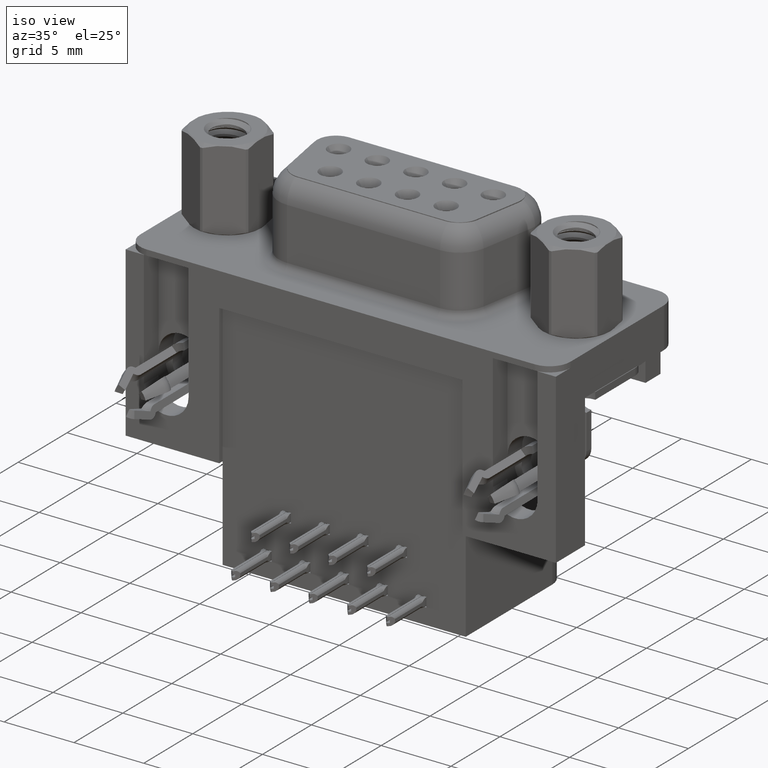
[diagram: clean part render]
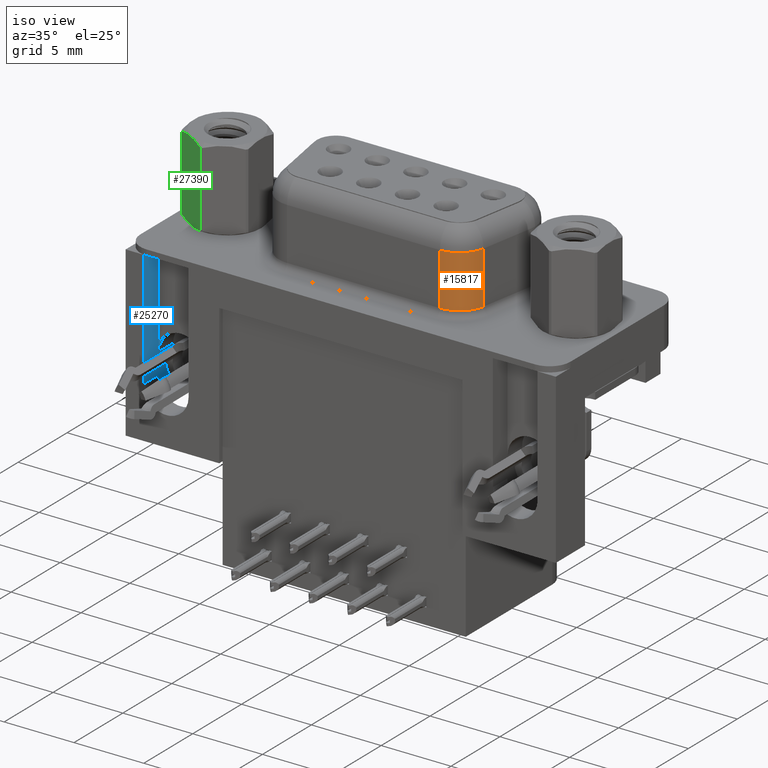
[diagram: same view with three faces highlighted in distinct colors, each labeled with its STEP entity id]
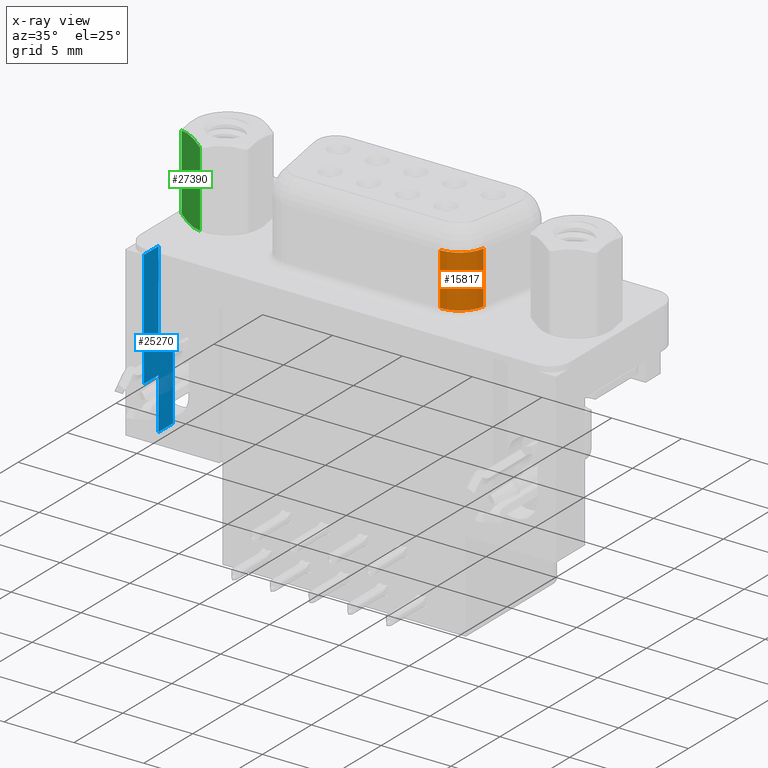
[diagram: x-ray of the same camera — body ghosted, the three highlighted faces saturated]
A machine part, iso view with three faces highlighted in distinct colors.
The next image is the same camera in x-ray (body ghosted, the three faces saturated) — at least one of them is partly hidden behind the body in this view.
Their STEP definitions:

[orange] entity #15817 — the highlighted cylindrical surface (edge-blend (fillet) strip) has radius 2 mm, axis along (-0, -0, -1).
#3161 = ORIENTED_EDGE ( 'NONE', *, *, #16836, .T. ) ;
#4892 = DIRECTION ( 'NONE',  ( 0.0000000000000000000, 0.0000000000000000000, 1.000000000000000000 ) ) ;
#5104 = VERTEX_POINT ( 'NONE', #11008 ) ;
#5550 = EDGE_LOOP ( 'NONE', ( #25216, #28884, #3161, #28348 ) ) ;
#6656 = CARTESIAN_POINT ( 'NONE',  ( 17.97232477523701300, -3.950000000000002800, 6.400000000000000400 ) ) ;
#6810 = AXIS2_PLACEMENT_3D ( 'NONE', #19035, #4892, #21443 ) ;
#8546 = CARTESIAN_POINT ( 'NONE',  ( 19.94194028126143100, -2.297296355333849700, 0.8999999999999998000 ) ) ;
#9210 = FACE_OUTER_BOUND ( 'NONE', #5550, .T. ) ;
#9433 = CARTESIAN_POINT ( 'NONE',  ( 17.97232477523701300, -1.950000000000002200, 4.650000000000000400 ) ) ;
#10049 = CARTESIAN_POINT ( 'NONE',  ( 17.97232477523701300, -3.950000000000002800, 4.650000000000000400 ) ) ;
#11008 = CARTESIAN_POINT ( 'NONE',  ( 19.94194028126143100, -2.297296355333849700, 4.650000000000000400 ) ) ;
#11175 = CARTESIAN_POINT ( 'NONE',  ( 17.97232477523701300, -1.950000000000002200, 6.400000000000000400 ) ) ;
#11297 = VERTEX_POINT ( 'NONE', #10049 ) ;
#11452 = DIRECTION ( 'NONE',  ( -0.0000000000000000000, -0.0000000000000000000, -1.000000000000000000 ) ) ;
#11827 = DIRECTION ( 'NONE',  ( -1.000000000000000000, 0.0000000000000000000, 0.0000000000000000000 ) ) ;
#14301 = VECTOR ( 'NONE', #11452, 1000.000000000000000 ) ;
#14759 = CYLINDRICAL_SURFACE ( 'NONE', #30057, 2.000000000000001800 ) ;
#15030 = LINE ( 'NONE', #19691, #14301 ) ;
#15789 = LINE ( 'NONE', #6656, #20629 ) ;
#15817 = ADVANCED_FACE ( 'NONE', ( #9210 ), #14759, .T. ) ;
#16836 = EDGE_CURVE ( 'NONE', #11297, #25065, #15789, .T. ) ;
#18171 = EDGE_CURVE ( 'NONE', #5104, #29366, #15030, .T. ) ;
#18283 = DIRECTION ( 'NONE',  ( -0.0000000000000000000, -0.0000000000000000000, -1.000000000000000000 ) ) ;
#19035 = CARTESIAN_POINT ( 'NONE',  ( 17.97232477523701300, -1.950000000000002200, 0.8999999999999998000 ) ) ;
#19691 = CARTESIAN_POINT ( 'NONE',  ( 19.94194028126143100, -2.297296355333849700, 6.400000000000000400 ) ) ;
#20629 = VECTOR ( 'NONE', #23204, 1000.000000000000000 ) ;
#21443 = DIRECTION ( 'NONE',  ( 1.000000000000000000, 0.0000000000000000000, 0.0000000000000000000 ) ) ;
#22194 = EDGE_CURVE ( 'NONE', #5104, #11297, #28887, .T. ) ;
#22233 = EDGE_CURVE ( 'NONE', #25065, #29366, #27389, .T. ) ;
#23204 = DIRECTION ( 'NONE',  ( -0.0000000000000000000, -0.0000000000000000000, -1.000000000000000000 ) ) ;
#24913 = CARTESIAN_POINT ( 'NONE',  ( 17.97232477523701300, -3.950000000000002800, 0.8999999999999998000 ) ) ;
#25065 = VERTEX_POINT ( 'NONE', #24913 ) ;
#25216 = ORIENTED_EDGE ( 'NONE', *, *, #18171, .F. ) ;
#25929 = DIRECTION ( 'NONE',  ( -0.0000000000000000000, -0.0000000000000000000, -1.000000000000000000 ) ) ;
#27251 = DIRECTION ( 'NONE',  ( -1.000000000000000000, 0.0000000000000000000, 0.0000000000000000000 ) ) ;
#27389 = CIRCLE ( 'NONE', #6810, 2.000000000000001800 ) ;
#28348 = ORIENTED_EDGE ( 'NONE', *, *, #22233, .T. ) ;
#28884 = ORIENTED_EDGE ( 'NONE', *, *, #22194, .T. ) ;
#28887 = CIRCLE ( 'NONE', #29558, 2.000000000000001800 ) ;
#29366 = VERTEX_POINT ( 'NONE', #8546 ) ;
#29558 = AXIS2_PLACEMENT_3D ( 'NONE', #9433, #25929, #11827 ) ;
#30057 = AXIS2_PLACEMENT_3D ( 'NONE', #11175, #18283, #27251 ) ;

[blue] entity #25270 — the highlighted planar face has unit normal (-1, 0, 0).
#279 = FACE_OUTER_BOUND ( 'NONE', #23797, .T. ) ;
#338 = CARTESIAN_POINT ( 'NONE',  ( -1.600000000000000300, -3.294999999999998200, -12.05000000000000100 ) ) ;
#655 = EDGE_CURVE ( 'NONE', #8091, #10678, #3740, .T. ) ;
#982 = ORIENTED_EDGE ( 'NONE', *, *, #655, .F. ) ;
#1026 = CARTESIAN_POINT ( 'NONE',  ( -1.600000000000000500, -4.774999999999997700, -2.168404344971008900E-016 ) ) ;
#1117 = CARTESIAN_POINT ( 'NONE',  ( -1.600000000000000800, -6.274999999999998600, -2.168404344971008900E-016 ) ) ;
#3200 = VECTOR ( 'NONE', #21126, 1000.000000000000000 ) ;
#3270 = LINE ( 'NONE', #1117, #15783 ) ;
#3528 = VERTEX_POINT ( 'NONE', #10910 ) ;
#3740 = LINE ( 'NONE', #1026, #23353 ) ;
#3973 = VERTEX_POINT ( 'NONE', #5645 ) ;
#5645 = CARTESIAN_POINT ( 'NONE',  ( -1.599999999999997200, -6.274999999999998600, -8.349999999999999600 ) ) ;
#5760 = EDGE_CURVE ( 'NONE', #3528, #25320, #17697, .T. ) ;
#6597 = DIRECTION ( 'NONE',  ( -1.970636860084006900E-016, -1.000000000000000000, -0.0000000000000000000 ) ) ;
#6759 = CARTESIAN_POINT ( 'NONE',  ( -1.600000000000000300, -4.774999999999997700, -6.850000000000000500 ) ) ;
#6803 = EDGE_CURVE ( 'NONE', #24375, #3973, #3270, .T. ) ;
#7322 = CARTESIAN_POINT ( 'NONE',  ( -1.600000000000000500, -4.774999999999997700, -2.168404344971008900E-016 ) ) ;
#8091 = VERTEX_POINT ( 'NONE', #7322 ) ;
#9742 = CARTESIAN_POINT ( 'NONE',  ( -1.599999999999997000, -4.794999999999998200, -8.349999999999999600 ) ) ;
#10254 = LINE ( 'NONE', #23141, #15025 ) ;
#10423 = DIRECTION ( 'NONE',  ( 0.0000000000000000000, 0.0000000000000000000, -1.000000000000000000 ) ) ;
#10678 = VERTEX_POINT ( 'NONE', #6759 ) ;
#10814 = VECTOR ( 'NONE', #21908, 1000.000000000000000 ) ;
#10910 = CARTESIAN_POINT ( 'NONE',  ( -1.600000000000000300, -4.794999999999998200, -12.04999999999999900 ) ) ;
#11129 = DIRECTION ( 'NONE',  ( 0.0000000000000000000, 0.0000000000000000000, -1.000000000000000000 ) ) ;
#11132 = EDGE_CURVE ( 'NONE', #3528, #11268, #15480, .T. ) ;
#11268 = VERTEX_POINT ( 'NONE', #338 ) ;
#11611 = CARTESIAN_POINT ( 'NONE',  ( -1.600000000000000300, -3.294999999999998200, -6.850000000000000500 ) ) ;
#11914 = DIRECTION ( 'NONE',  ( -1.000000000000000000, 1.970636860084006900E-016, 0.0000000000000000000 ) ) ;
#12005 = DIRECTION ( 'NONE',  ( -0.0000000000000000000, 1.000000000000000000, -0.0000000000000000000 ) ) ;
#13307 = CARTESIAN_POINT ( 'NONE',  ( -1.600000000000000300, -3.294999999999998200, -6.850000000000000500 ) ) ;
#13413 = VERTEX_POINT ( 'NONE', #13307 ) ;
#14375 = CARTESIAN_POINT ( 'NONE',  ( -1.600000000000000300, -4.794999999999998200, -6.850000000000000500 ) ) ;
#14924 = ORIENTED_EDGE ( 'NONE', *, *, #26472, .T. ) ;
#15025 = VECTOR ( 'NONE', #6597, 1000.000000000000000 ) ;
#15480 = LINE ( 'NONE', #23581, #21064 ) ;
#15783 = VECTOR ( 'NONE', #10423, 1000.000000000000000 ) ;
#17697 = LINE ( 'NONE', #21820, #30255 ) ;
#18080 = ORIENTED_EDGE ( 'NONE', *, *, #11132, .T. ) ;
#18666 = VECTOR ( 'NONE', #12005, 1000.000000000000000 ) ;
#18669 = ORIENTED_EDGE ( 'NONE', *, *, #5760, .F. ) ;
#19275 = EDGE_CURVE ( 'NONE', #10678, #13413, #24937, .T. ) ;
#19523 = CARTESIAN_POINT ( 'NONE',  ( -1.599999999999997000, -4.774999999999997700, -8.349999999999999600 ) ) ;
#19714 = ORIENTED_EDGE ( 'NONE', *, *, #19275, .F. ) ;
#20644 = ORIENTED_EDGE ( 'NONE', *, *, #25792, .T. ) ;
#21064 = VECTOR ( 'NONE', #25911, 1000.000000000000000 ) ;
#21126 = DIRECTION ( 'NONE',  ( -0.0000000000000000000, -0.0000000000000000000, 1.000000000000000000 ) ) ;
#21476 = EDGE_CURVE ( 'NONE', #25320, #3973, #23408, .T. ) ;
#21742 = ORIENTED_EDGE ( 'NONE', *, *, #6803, .T. ) ;
#21820 = CARTESIAN_POINT ( 'NONE',  ( -1.600000000000000300, -4.794999999999998200, -6.850000000000000500 ) ) ;
#21908 = DIRECTION ( 'NONE',  ( -1.970636860084006900E-016, -1.000000000000000000, -0.0000000000000000000 ) ) ;
#22040 = LINE ( 'NONE', #11611, #3200 ) ;
#23141 = CARTESIAN_POINT ( 'NONE',  ( -1.600000000000000500, -4.774999999999997700, -2.168404344971008900E-016 ) ) ;
#23353 = VECTOR ( 'NONE', #11129, 1000.000000000000000 ) ;
#23408 = LINE ( 'NONE', #19523, #10814 ) ;
#23581 = CARTESIAN_POINT ( 'NONE',  ( -1.600000000000000500, -4.774999999999997700, -12.05000000000000100 ) ) ;
#23696 = PLANE ( 'NONE',  #25281 ) ;
#23797 = EDGE_LOOP ( 'NONE', ( #18669, #18080, #14924, #19714, #982, #20644, #21742, #25945 ) ) ;
#24375 = VERTEX_POINT ( 'NONE', #25223 ) ;
#24937 = LINE ( 'NONE', #14375, #18666 ) ;
#25223 = CARTESIAN_POINT ( 'NONE',  ( -1.600000000000000800, -6.274999999999998600, 0.0000000000000000000 ) ) ;
#25270 = ADVANCED_FACE ( 'NONE', ( #279 ), #23696, .F. ) ;
#25281 = AXIS2_PLACEMENT_3D ( 'NONE', #26020, #11914, #28404 ) ;
#25320 = VERTEX_POINT ( 'NONE', #9742 ) ;
#25792 = EDGE_CURVE ( 'NONE', #8091, #24375, #10254, .T. ) ;
#25911 = DIRECTION ( 'NONE',  ( 1.970636860084006900E-016, 1.000000000000000000, -0.0000000000000000000 ) ) ;
#25945 = ORIENTED_EDGE ( 'NONE', *, *, #21476, .F. ) ;
#26020 = CARTESIAN_POINT ( 'NONE',  ( -1.600000000000000500, -4.774999999999997700, -2.168404344971008900E-016 ) ) ;
#26472 = EDGE_CURVE ( 'NONE', #11268, #13413, #22040, .T. ) ;
#26524 = DIRECTION ( 'NONE',  ( -0.0000000000000000000, -0.0000000000000000000, 1.000000000000000000 ) ) ;
#28404 = DIRECTION ( 'NONE',  ( -1.970636860084006900E-016, -1.000000000000000000, 0.0000000000000000000 ) ) ;
#30255 = VECTOR ( 'NONE', #26524, 1000.000000000000000 ) ;

[green] entity #27390 — the highlighted planar face has unit normal (-0.5, -0.866, -0).
#1050 = VECTOR ( 'NONE', #4078, 1000.000000000000000 ) ;
#2105 = CARTESIAN_POINT ( 'NONE',  ( -1.566748215808590400, -1.845068152866139200, 0.4184370999846776500 ) ) ;
#2201 = ORIENTED_EDGE ( 'NONE', *, *, #26444, .T. ) ;
#2615 = CARTESIAN_POINT ( 'NONE',  ( -2.292775773771446700, -1.425895946837196800, 0.6020725942163620600 ) ) ;
#3577 = CARTESIAN_POINT ( 'NONE',  ( -0.08847422622855136100, -2.698550038686196500, 0.6020725942163576100 ) ) ;
#3762 = AXIS2_PLACEMENT_3D ( 'NONE', #7927, #12718, #29208 ) ;
#4078 = DIRECTION ( 'NONE',  ( 0.0000000000000000000, -3.491481338843133400E-015, 1.000000000000000000 ) ) ;
#4385 = EDGE_CURVE ( 'NONE', #11204, #8709, #22901, .T. ) ;
#4491 = CARTESIAN_POINT ( 'NONE',  ( -0.8197600140121044100, -2.276341992254815100, 0.4350536658932598900 ) ) ;
#5869 = B_SPLINE_CURVE_WITH_KNOTS ( 'NONE', 3,
 ( #11519, #20918, #2105, #18621, #4491, #21020, #6841, #23396 ),
 .UNSPECIFIED., .F., .F.,
 ( 4, 2, 2, 4 ),
 ( 7.538285215075045600E-007, 0.001282653025697990300, 0.001923602624286231400, 0.002564552222874472700 ),
 .UNSPECIFIED. ) ;
#6146 = EDGE_CURVE ( 'NONE', #25106, #11204, #27439, .T. ) ;
#6841 = CARTESIAN_POINT ( 'NONE',  ( -0.2691543423796094500, -2.594234324989170800, 0.5452964734421872400 ) ) ;
#7927 = CARTESIAN_POINT ( 'NONE',  ( -2.381250000000001400, -1.374815328507782700, -3.800000000000005200 ) ) ;
#8055 = LINE ( 'NONE', #18195, #1050 ) ;
#8614 = ORIENTED_EDGE ( 'NONE', *, *, #12320, .T. ) ;
#8709 = VERTEX_POINT ( 'NONE', #2615 ) ;
#9068 = CARTESIAN_POINT ( 'NONE',  ( -0.4491694541857618700, -2.490302551729707900, 6.111270679307115600 ) ) ;
#9168 = CARTESIAN_POINT ( 'NONE',  ( -0.08847422622855136100, -2.698550038686215100, 5.997927405783622500 ) ) ;
#10347 = VECTOR ( 'NONE', #15751, 1000.000000000000000 ) ;
#11204 = VERTEX_POINT ( 'NONE', #21414 ) ;
#11267 = FACE_OUTER_BOUND ( 'NONE', #18479, .T. ) ;
#11519 = CARTESIAN_POINT ( 'NONE',  ( -2.292775773771446700, -1.425895946837196800, 0.6020725942163620600 ) ) ;
#11563 = CARTESIAN_POINT ( 'NONE',  ( -1.561489985987894100, -1.848103993268598300, 6.164946334106725000 ) ) ;
#12320 = EDGE_CURVE ( 'NONE', #16662, #25106, #8055, .T. ) ;
#12718 = DIRECTION ( 'NONE',  ( -0.5000000000000001100, -0.8660254037844386000, -3.023711536277457000E-015 ) ) ;
#13926 = CARTESIAN_POINT ( 'NONE',  ( -2.112095657620390200, -1.530211660534242200, 6.054703526557795500 ) ) ;
#15751 = DIRECTION ( 'NONE',  ( -0.0000000000000000000, 3.491481338843133400E-015, -1.000000000000000000 ) ) ;
#16662 = VERTEX_POINT ( 'NONE', #3577 ) ;
#18017 = CARTESIAN_POINT ( 'NONE',  ( -2.292775773771446700, -1.425895946837207700, 3.792310433223467400 ) ) ;
#18195 = CARTESIAN_POINT ( 'NONE',  ( -0.08847422622855136100, -2.698550038686207600, 3.792310433223462500 ) ) ;
#18479 = EDGE_LOOP ( 'NONE', ( #2201, #8614, #23388, #28302 ) ) ;
#18564 = CARTESIAN_POINT ( 'NONE',  ( -0.8145017841914091700, -2.279377832657274900, 6.181562900015309800 ) ) ;
#18621 = CARTESIAN_POINT ( 'NONE',  ( -1.007456304815086600, -2.167975488233818500, 0.4178473236788027800 ) ) ;
#20918 = CARTESIAN_POINT ( 'NONE',  ( -1.932080545814237800, -1.634143433793705500, 0.4887293206928687800 ) ) ;
#21020 = CARTESIAN_POINT ( 'NONE',  ( -0.4513137682073005100, -2.489064531452126200, 0.4988976776961064900 ) ) ;
#21414 = CARTESIAN_POINT ( 'NONE',  ( -2.292775773771446700, -1.425895946837215700, 5.997927405783626000 ) ) ;
#22901 = LINE ( 'NONE', #18017, #10347 ) ;
#23388 = ORIENTED_EDGE ( 'NONE', *, *, #6146, .T. ) ;
#23396 = CARTESIAN_POINT ( 'NONE',  ( -0.08847422622855136100, -2.698550038686196500, 0.6020725942163576100 ) ) ;
#24376 = PLANE ( 'NONE',  #3762 ) ;
#25106 = VERTEX_POINT ( 'NONE', #25124 ) ;
#25124 = CARTESIAN_POINT ( 'NONE',  ( -0.08847422622855136100, -2.698550038686215100, 5.997927405783622500 ) ) ;
#25672 = CARTESIAN_POINT ( 'NONE',  ( -1.373793695184910300, -1.956470497289595900, 6.182152676321182500 ) ) ;
#26444 = EDGE_CURVE ( 'NONE', #8709, #16662, #5869, .T. ) ;
#27390 = ADVANCED_FACE ( 'NONE', ( #11267 ), #24376, .T. ) ;
#27439 = B_SPLINE_CURVE_WITH_KNOTS ( 'NONE', 3,
 ( #9168, #9068, #18564, #25672, #11563, #28049, #13926, #30425 ),
 .UNSPECIFIED., .F., .F.,
 ( 4, 2, 2, 4 ),
 ( 7.538285214501271800E-007, 0.001282653025697933300, 0.001923602624286174100, 0.002564552222874415400 ),
 .UNSPECIFIED. ) ;
#28049 = CARTESIAN_POINT ( 'NONE',  ( -1.929936231792698900, -1.635381454071287400, 6.101102322303877800 ) ) ;
#28302 = ORIENTED_EDGE ( 'NONE', *, *, #4385, .T. ) ;
#29208 = DIRECTION ( 'NONE',  ( 0.8660254037844386000, -0.5000000000000001100, -1.745740669421567100E-015 ) ) ;
#30425 = CARTESIAN_POINT ( 'NONE',  ( -2.292775773771446700, -1.425895946837215700, 5.997927405783626000 ) ) ;